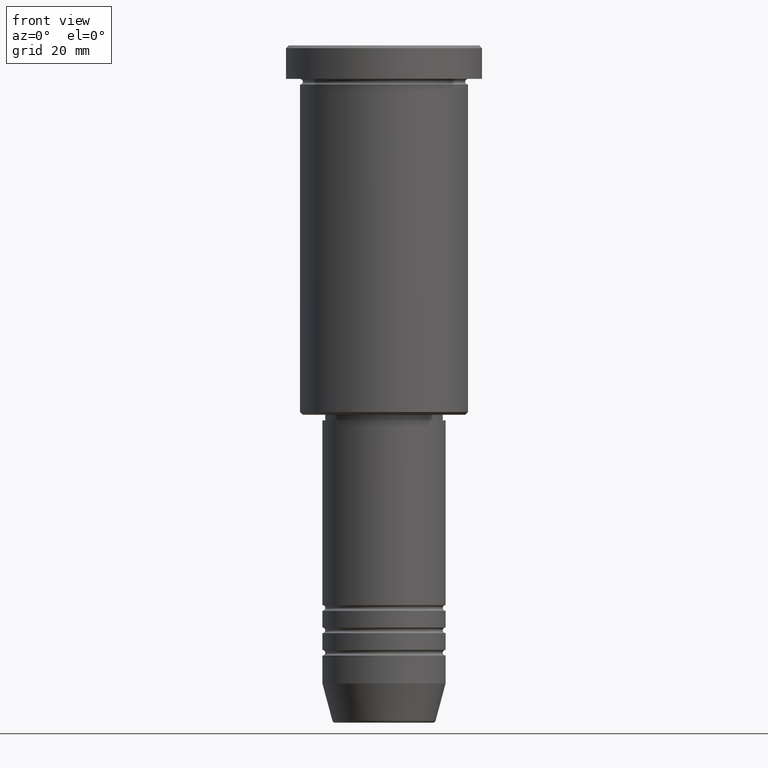
[diagram: clean part render]
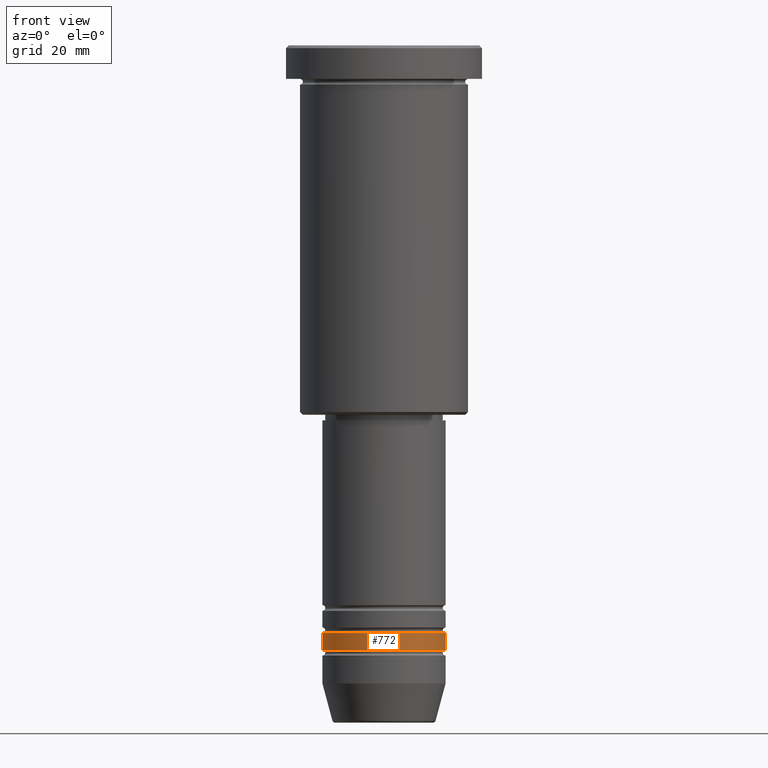
[diagram: same view with one face highlighted and labeled with its STEP entity id]
A machine part, front view. The second image highlights one B-rep face of the part: STEP entity #772.
In plain terms, the highlighted cylindrical surface (partial cylindrical patch) has radius 11 mm, axis along (-0, -0, 1).
Its self-contained STEP definition (entity closure, byte-faithful):
#19 = VERTEX_POINT ( 'NONE', #827 ) ;
#24 = DIRECTION ( 'NONE',  ( 1.000000000000000000, 0.000000000000000000, 0.000000000000000000 ) ) ;
#96 = EDGE_CURVE ( 'NONE', #792, #1035, #923, .T. ) ;
#105 = CARTESIAN_POINT ( 'NONE',  ( -11.00000000000000000, 1.347111479062088405E-15, 0.000000000000000000 ) ) ;
#117 = CARTESIAN_POINT ( 'NONE',  ( 0.000000000000000000, 0.000000000000000000, -104.9999999999999005 ) ) ;
#177 = CARTESIAN_POINT ( 'NONE',  ( -11.00000000000000000, 1.347111479062088405E-15, -104.9999999999999005 ) ) ;
#259 = CIRCLE ( 'NONE', #619, 11.00000000000000000 ) ;
#301 = FACE_OUTER_BOUND ( 'NONE', #861, .T. ) ;
#380 = EDGE_CURVE ( 'NONE', #1035, #19, #1065, .T. ) ;
#447 = EDGE_CURVE ( 'NONE', #1117, #19, #631, .T. ) ;
#448 = CARTESIAN_POINT ( 'NONE',  ( 11.00000000000000000, 0.000000000000000000, 0.000000000000000000 ) ) ;
#470 = DIRECTION ( 'NONE',  ( -0.000000000000000000, -0.000000000000000000, 1.000000000000000000 ) ) ;
#479 = DIRECTION ( 'NONE',  ( -0.000000000000000000, -0.000000000000000000, 1.000000000000000000 ) ) ;
#487 = CARTESIAN_POINT ( 'NONE',  ( 0.000000000000000000, 0.000000000000000000, 0.000000000000000000 ) ) ;
#501 = AXIS2_PLACEMENT_3D ( 'NONE', #117, #845, #930 ) ;
#528 = VECTOR ( 'NONE', #470, 1000.000000000000000 ) ;
#570 = CARTESIAN_POINT ( 'NONE',  ( -11.00000000000000000, 1.347111479062088405E-15, -107.9999999999998863 ) ) ;
#603 = CARTESIAN_POINT ( 'NONE',  ( 11.00000000000000000, 0.000000000000000000, -107.9999999999998863 ) ) ;
#619 = AXIS2_PLACEMENT_3D ( 'NONE', #1009, #913, #24 ) ;
#631 = LINE ( 'NONE', #448, #654 ) ;
#654 = VECTOR ( 'NONE', #1023, 1000.000000000000000 ) ;
#768 = ORIENTED_EDGE ( 'NONE', *, *, #96, .F. ) ;
#772 = ADVANCED_FACE ( 'NONE', ( #301 ), #1144, .T. ) ;
#792 = VERTEX_POINT ( 'NONE', #570 ) ;
#827 = CARTESIAN_POINT ( 'NONE',  ( 11.00000000000000000, 0.000000000000000000, -104.9999999999999005 ) ) ;
#840 = ORIENTED_EDGE ( 'NONE', *, *, #380, .F. ) ;
#845 = DIRECTION ( 'NONE',  ( -0.000000000000000000, -0.000000000000000000, 1.000000000000000000 ) ) ;
#861 = EDGE_LOOP ( 'NONE', ( #768, #1132, #1154, #840 ) ) ;
#891 = AXIS2_PLACEMENT_3D ( 'NONE', #487, #479, #1049 ) ;
#913 = DIRECTION ( 'NONE',  ( -0.000000000000000000, -0.000000000000000000, 1.000000000000000000 ) ) ;
#923 = LINE ( 'NONE', #105, #528 ) ;
#930 = DIRECTION ( 'NONE',  ( 1.000000000000000000, 0.000000000000000000, 0.000000000000000000 ) ) ;
#1009 = CARTESIAN_POINT ( 'NONE',  ( 0.000000000000000000, 0.000000000000000000, -107.9999999999998863 ) ) ;
#1023 = DIRECTION ( 'NONE',  ( -0.000000000000000000, -0.000000000000000000, 1.000000000000000000 ) ) ;
#1035 = VERTEX_POINT ( 'NONE', #177 ) ;
#1049 = DIRECTION ( 'NONE',  ( 1.000000000000000000, 0.000000000000000000, 0.000000000000000000 ) ) ;
#1065 = CIRCLE ( 'NONE', #501, 11.00000000000000000 ) ;
#1117 = VERTEX_POINT ( 'NONE', #603 ) ;
#1132 = ORIENTED_EDGE ( 'NONE', *, *, #1168, .T. ) ;
#1144 = CYLINDRICAL_SURFACE ( 'NONE', #891, 11.00000000000000000 ) ;
#1154 = ORIENTED_EDGE ( 'NONE', *, *, #447, .T. ) ;
#1168 = EDGE_CURVE ( 'NONE', #792, #1117, #259, .T. ) ;